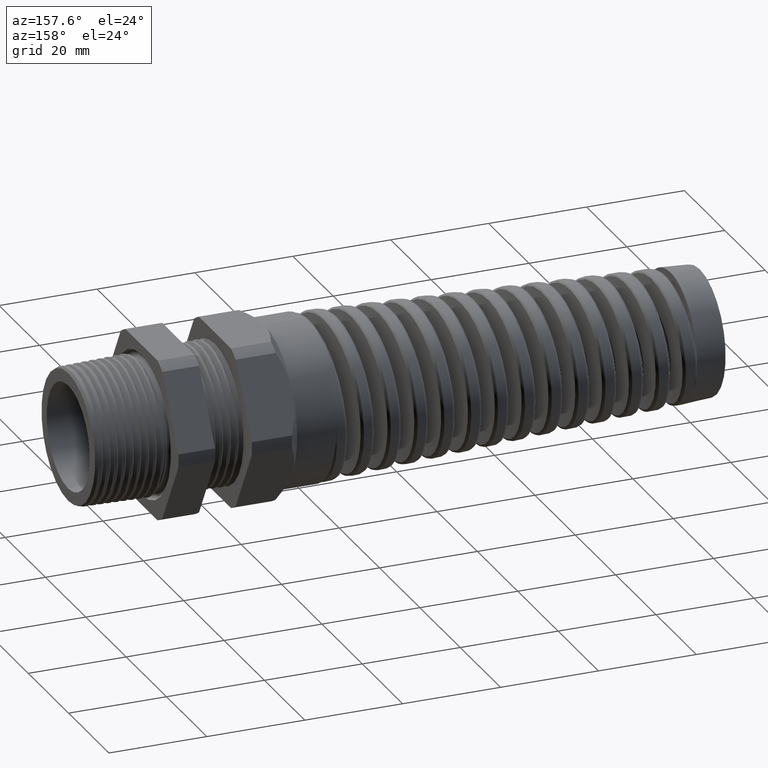
[diagram: clean part render]
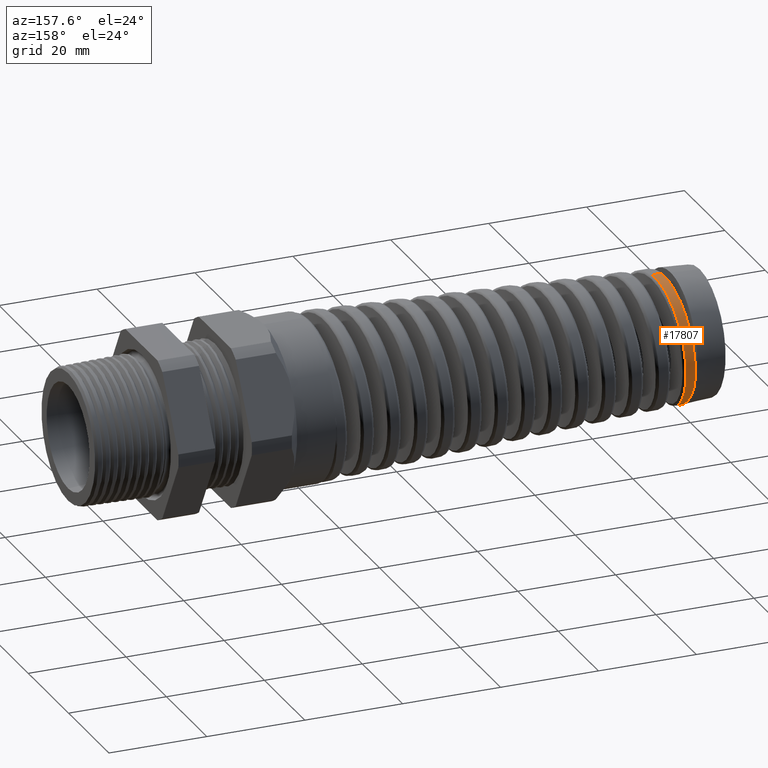
[diagram: same view with one face highlighted and labeled with its STEP entity id]
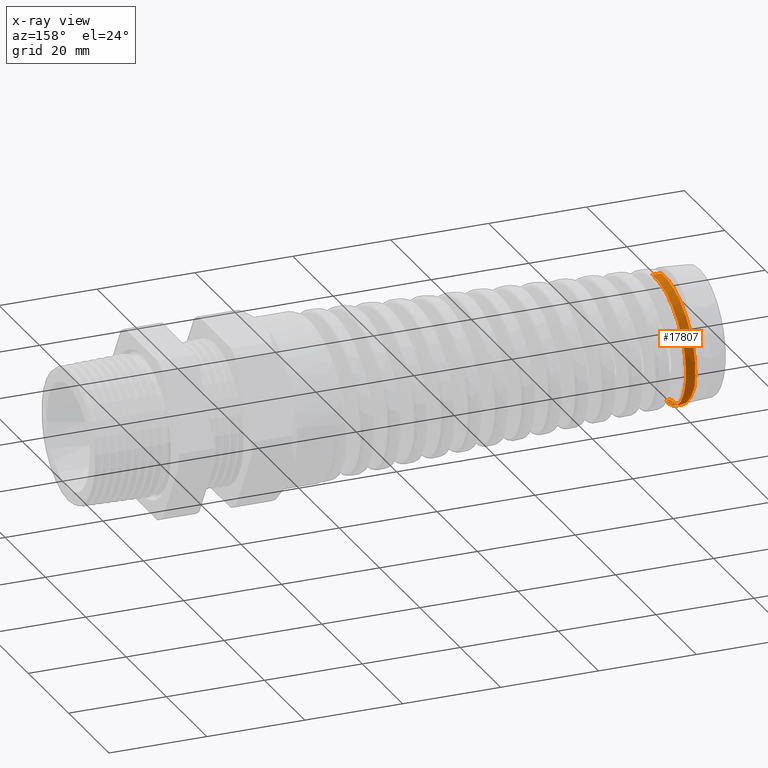
[diagram: x-ray of the same camera — body ghosted, the highlighted face saturated]
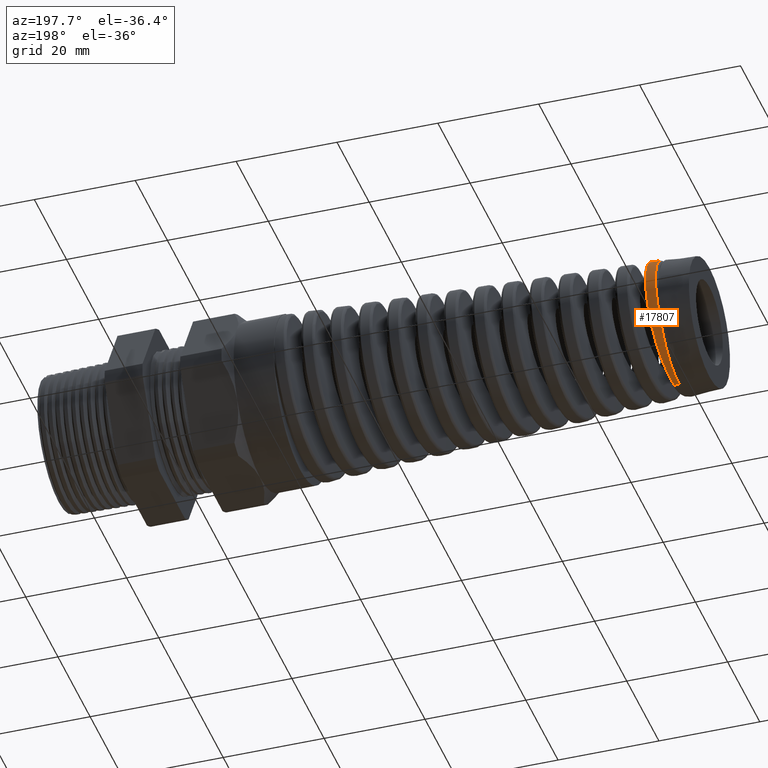
[diagram: same view with one face highlighted and labeled with its STEP entity id]
A machine part, auxiliary view. The second image highlights one B-rep face of the part: STEP entity #17807.
The next image is the same camera in x-ray: the body ghosted, the highlighted face saturated — about 0% of this face is hidden behind the body in this view.
A second angle (auxiliary view) of the same face is appended — the face is thin or edge-on in the first view.
In plain terms, the highlighted conical surface has half-angle 2.5 deg.
Its self-contained STEP definition (entity closure, byte-faithful):
#6779 = DIRECTION ( 'NONE',  ( 0.0000000000000000000, 0.0000000000000000000, -1.000000000000000000 ) ) ;
#6780 = DIRECTION ( 'NONE',  ( 1.000000000000000000, 0.0000000000000000000, 0.0000000000000000000 ) ) ;
#6781 = CARTESIAN_POINT ( 'NONE',  ( -1.530000000000000000, 0.0000000000000000000, 0.0000000000000000000 ) ) ;
#6782 = AXIS2_PLACEMENT_3D ( 'NONE', #6781, #6780, #6779 ) ;
#6783 = CONICAL_SURFACE ( 'NONE', #6782, 0.6500000000000000200, 0.04363323129985850100 ) ;
#6787 = FACE_OUTER_BOUND ( 'NONE', #17877, .T. ) ;
#6803 = CARTESIAN_POINT ( 'NONE',  ( -4.439548189586066200, 0.3181900600162597700, 0.4164494145122699700 ) ) ;
#6804 = CARTESIAN_POINT ( 'NONE',  ( -4.436108612142491300, 0.2753447390481653700, 0.4451196532099767600 ) ) ;
#6805 = CARTESIAN_POINT ( 'NONE',  ( -4.434959665092405200, 0.2605712338280110600, 0.4539790290412117900 ) ) ;
#6806 = CARTESIAN_POINT ( 'NONE',  ( -4.432679146589341800, 0.2304952817869450600, 0.4700749351816120900 ) ) ;
#6807 = CARTESIAN_POINT ( 'NONE',  ( -4.430405841262495600, 0.1997640212051422200, 0.4846343297466918500 ) ) ;
#6808 = CARTESIAN_POINT ( 'NONE',  ( -4.428127210473830300, 0.1677388324938869400, 0.4961564757492454300 ) ) ;
#6809 = CARTESIAN_POINT ( 'NONE',  ( -4.425837817362332100, 0.1350563521653808700, 0.5061343735995741400 ) ) ;
#6810 = CARTESIAN_POINT ( 'NONE',  ( -4.424681366827922300, 0.1182919723504226200, 0.5103664943590744400 ) ) ;
#6812 = CARTESIAN_POINT ( 'NONE',  ( -4.421247129773004900, 0.06787619969880623300, 0.5204787659265565100 ) ) ;
#6813 = CARTESIAN_POINT ( 'NONE',  ( -4.418996807634899300, 0.03404456046795612000, 0.5238636753190288900 ) ) ;
#6814 = CARTESIAN_POINT ( 'NONE',  ( -4.416731862972870500, -7.771221828442405500E-013, 0.5239625649385580800 ) ) ;
#6817 = B_SPLINE_CURVE_WITH_KNOTS ( 'NONE', 3,
 ( #6814, #6813, #6812, #6810, #6809, #6808, #6807, #6806, #6805, #6804, #6803, #6900, #6899, #6898, #6896, #6895, #6893, #6892, #6890, #6889, #6888, #6887, #6885, #6884, #6882, #6881, #6880, #6879, #6878, #6877, #6876, #6875, #6874, #6873, #6872, #6871, #6870, #6869, #6868, #6867, #6865, #6864, #6863, #6862, #6861, #6860, #6858, #6857 ),
 .UNSPECIFIED., .F., .F.,
 ( 4, 2, 2, 1, 2, 2, 2, 2, 2, 2, 2, 2, 2, 2, 1, 2, 2, 2, 2, 2, 2, 2, 2, 2, 4 ),
 ( 1.207144779256859300, 1.209771431820416900, 1.211084758102195700, 1.212398084383974600, 1.213711410665753400, 1.215024736947532400, 1.217651389511090100, 1.218964715792868900, 1.220278042074647700, 1.222904694638205400, 1.224218020919984200, 1.225531347201763000, 1.228157999765320700, 1.229471326047099500, 1.230784652328878300, 1.232097978610657200, 1.233411304892436000, 1.236037957455993700, 1.238664610019551500, 1.241291262583109200, 1.242604588864888000, 1.243917915146666800, 1.245231241428445700, 1.246544567710224500, 1.249171220273782100 ),
 .UNSPECIFIED. ) ;
#6857 = CARTESIAN_POINT ( 'NONE',  ( -4.526572885852961500, 3.060761715072578000E-014, -0.5191668023095779000 ) ) ;
#6858 = CARTESIAN_POINT ( 'NONE',  ( -4.524278735423719900, 0.03400598599264387900, -0.5192669670804905800 ) ) ;
#6860 = CARTESIAN_POINT ( 'NONE',  ( -4.521987925759041200, 0.06789281599935845200, -0.5160585689309235000 ) ) ;
#6861 = CARTESIAN_POINT ( 'NONE',  ( -4.518507147182266900, 0.1185346504183759800, -0.5061081309770127900 ) ) ;
#6862 = CARTESIAN_POINT ( 'NONE',  ( -4.517352133634926000, 0.1352127958961004700, -0.5019565786577079300 ) ) ;
#6863 = CARTESIAN_POINT ( 'NONE',  ( -4.515061901737523100, 0.1678515944966487400, -0.4921104211152156300 ) ) ;
#6864 = CARTESIAN_POINT ( 'NONE',  ( -4.513922898512741500, 0.1838647260515191600, -0.4864056693381766400 ) ) ;
#6865 = CARTESIAN_POINT ( 'NONE',  ( -4.511643641477962600, 0.2152835024554654300, -0.4734481759506079500 ) ) ;
#6867 = CARTESIAN_POINT ( 'NONE',  ( -4.510503405056670800, 0.2306891625475233600, -0.4661954699761483600 ) ) ;
#6868 = CARTESIAN_POINT ( 'NONE',  ( -4.508208490897462900, 0.2608804488261396400, -0.4501125271239195300 ) ) ;
#6869 = CARTESIAN_POINT ( 'NONE',  ( -4.507048230323591500, 0.2757319909781910700, -0.4412312074915378200 ) ) ;
#6870 = CARTESIAN_POINT ( 'NONE',  ( -4.503596651901589500, 0.3184500443449981300, -0.4127210285979985300 ) ) ;
#6871 = CARTESIAN_POINT ( 'NONE',  ( -4.501317306656464000, 0.3447261849617935800, -0.3911585043811191500 ) ) ;
#6872 = CARTESIAN_POINT ( 'NONE',  ( -4.496724095842305100, 0.3929361811242216300, -0.3430029004077488900 ) ) ;
#6873 = CARTESIAN_POINT ( 'NONE',  ( -4.494395975708964200, 0.4149803932745199700, -0.3161424210149450000 ) ) ;
#6874 = CARTESIAN_POINT ( 'NONE',  ( -4.489830732727364500, 0.4527986856184587100, -0.2594911767696761500 ) ) ;
#6875 = CARTESIAN_POINT ( 'NONE',  ( -4.487568691814588300, 0.4688317206135853000, -0.2295126096656594000 ) ) ;
#6876 = CARTESIAN_POINT ( 'NONE',  ( -4.484127135497975500, 0.4884891143526835000, -0.1820267236444623200 ) ) ;
#6877 = CARTESIAN_POINT ( 'NONE',  ( -4.482969294294933100, 0.4943060229050039700, -0.1657355716932960000 ) ) ;
#6878 = CARTESIAN_POINT ( 'NONE',  ( -4.480675717052330100, 0.5042011641650996400, -0.1330123296409090900 ) ) ;
#6879 = CARTESIAN_POINT ( 'NONE',  ( -4.478391913030200100, 0.5124367251216477300, -0.09998062984486684500 ) ) ;
#6880 = CARTESIAN_POINT ( 'NONE',  ( -4.476106820420204400, 0.5174128461645077800, -0.06634452090119265200 ) ) ;
#6881 = CARTESIAN_POINT ( 'NONE',  ( -4.473812595429745200, 0.5207418906562709700, -0.03240357120030252400 ) ) ;
#6882 = CARTESIAN_POINT ( 'NONE',  ( -4.472656287015121600, 0.5215823418465568300, -0.01521162894569735200 ) ) ;
#6884 = CARTESIAN_POINT ( 'NONE',  ( -4.469195005899421400, 0.5215377250531442200, 0.03636188576475583200 ) ) ;
#6885 = CARTESIAN_POINT ( 'NONE',  ( -4.466933206849873300, 0.5181410219177120500, 0.07022307439825306600 ) ) ;
#6887 = CARTESIAN_POINT ( 'NONE',  ( -4.463525729617963100, 0.5081616668612150000, 0.1202533253620102800 ) ) ;
#6888 = CARTESIAN_POINT ( 'NONE',  ( -4.462387648318026500, 0.5040152641776263200, 0.1368022489746849000 ) ) ;
#6889 = CARTESIAN_POINT ( 'NONE',  ( -4.460093855940060700, 0.4940386490358393300, 0.1696367137923571500 ) ) ;
#6890 = CARTESIAN_POINT ( 'NONE',  ( -4.458939956301039200, 0.4882056355114537900, 0.1858917077636559100 ) ) ;
#6892 = CARTESIAN_POINT ( 'NONE',  ( -4.455509794249286900, 0.4685639628469429100, 0.2331932623712766100 ) ) ;
#6893 = CARTESIAN_POINT ( 'NONE',  ( -4.453238888915883800, 0.4525315702921767200, 0.2631531245774952900 ) ) ;
#6895 = CARTESIAN_POINT ( 'NONE',  ( -4.449801118454796100, 0.4240826166766326100, 0.3057304489021346300 ) ) ;
#6896 = CARTESIAN_POINT ( 'NONE',  ( -4.448643986830716400, 0.4138006840550370000, 0.3195969014445768600 ) ) ;
#6898 = CARTESIAN_POINT ( 'NONE',  ( -4.446345888486283600, 0.3920157520860280100, 0.3461238390089595400 ) ) ;
#6899 = CARTESIAN_POINT ( 'NONE',  ( -4.445207700672288100, 0.3805478321510624200, 0.3587589984585120000 ) ) ;
#6900 = CARTESIAN_POINT ( 'NONE',  ( -4.441803356689861800, 0.3444660558181209000, 0.3948302025050692800 ) ) ;
#8548 = CARTESIAN_POINT ( 'NONE',  ( -4.558016244889601300, 0.4968208514996741400, -0.1475219487347013400 ) ) ;
#8549 = CARTESIAN_POINT ( 'NONE',  ( -4.560995567831389200, 0.4824089663200670800, -0.1890517935700999600 ) ) ;
#8550 = CARTESIAN_POINT ( 'NONE',  ( -4.562499192024713300, 0.4737984670341442400, -0.2095567973187388900 ) ) ;
#8551 = CARTESIAN_POINT ( 'NONE',  ( -4.564000000000000900, 0.4639169566595720600, -0.2293930079167151300 ) ) ;
#8552 = B_SPLINE_CURVE_WITH_KNOTS ( 'NONE', 3,
 ( #8551, #8550, #8549, #8548, #8618, #8617, #8616, #8615, #8614, #8613, #8612, #8611, #8610, #8609, #8608, #8607, #8606, #8605, #8604, #8603, #8602, #8601, #8600, #8599, #8598, #8597, #8596, #8595, #8594, #8593, #8592, #8591, #8590, #8589 ),
 .UNSPECIFIED., .F., .F.,
 ( 4, 2, 2, 2, 2, 2, 2, 2, 2, 2, 2, 2, 2, 2, 2, 2, 4 ),
 ( 0.0000000000000000000, 0.001691533287836767300, 0.003383066575673534600, 0.005074599863510301400, 0.005920366507428687400, 0.006766133151347072600, 0.008457666439183846400, 0.01014919972702061800, 0.01353226630269416600, 0.01522379959053094200, 0.01691533287836771700, 0.01860686616620448700, 0.01945263281012287600, 0.02029839945404126100, 0.02198993274187803500, 0.02368146602971480900, 0.02706453260538835600 ),
 .UNSPECIFIED. ) ;
#8553 = CARTESIAN_POINT ( 'NONE',  ( -4.416731862972870500, -7.771221828442405500E-013, 0.5239625649385580800 ) ) ;
#8554 = CARTESIAN_POINT ( 'NONE',  ( -4.492813281536715700, 1.136657049626931900E-015, 0.5206407784662434600 ) ) ;
#8560 = DIRECTION ( 'NONE',  ( 0.9990482215818576900, 5.341834311772755600E-018, 0.04361938736533626400 ) ) ;
#8561 = VECTOR ( 'NONE', #8560, 39.37007874015748100 ) ;
#8562 = CARTESIAN_POINT ( 'NONE',  ( -1.530000000000000000, 7.960204194457796700E-017, 0.6500000000000000200 ) ) ;
#8563 = LINE ( 'NONE', #8562, #8561 ) ;
#8564 = DIRECTION ( 'NONE',  ( 0.0000000000000000000, 0.0000000000000000000, -1.000000000000000000 ) ) ;
#8565 = DIRECTION ( 'NONE',  ( 1.000000000000000000, 0.0000000000000000000, 0.0000000000000000000 ) ) ;
#8566 = CARTESIAN_POINT ( 'NONE',  ( -4.564000000000000900, 0.0000000000000000000, 0.0000000000000000000 ) ) ;
#8567 = AXIS2_PLACEMENT_3D ( 'NONE', #8566, #8565, #8564 ) ;
#8568 = CIRCLE ( 'NONE', #8567, 0.5175326992155736500 ) ;
#8569 = CARTESIAN_POINT ( 'NONE',  ( -4.526572885852961500, 3.060761715072578000E-014, -0.5191668023095779000 ) ) ;
#8582 = CARTESIAN_POINT ( 'NONE',  ( -4.564000000000000900, 0.4639169566595720600, -0.2293930079167151300 ) ) ;
#8589 = CARTESIAN_POINT ( 'NONE',  ( -4.492813281536715700, 1.136657049626931900E-015, 0.5206407784662434600 ) ) ;
#8590 = CARTESIAN_POINT ( 'NONE',  ( -4.495770691029466800, 0.04390140525723860300, 0.5205116551792232600 ) ) ;
#8591 = CARTESIAN_POINT ( 'NONE',  ( -4.498688015818328400, 0.08725055013748317400, 0.5149193650724482900 ) ) ;
#8592 = CARTESIAN_POINT ( 'NONE',  ( -4.503159933208572800, 0.1514168375172072800, 0.4981548703117553700 ) ) ;
#8593 = CARTESIAN_POINT ( 'NONE',  ( -4.504647978160546600, 0.1723930159092410800, 0.4912112262388699800 ) ) ;
#8594 = CARTESIAN_POINT ( 'NONE',  ( -4.507599572075472200, 0.2129924815364635000, 0.4748768092980232800 ) ) ;
#8595 = CARTESIAN_POINT ( 'NONE',  ( -4.509068845045435500, 0.2327060572798604100, 0.4654628434508810100 ) ) ;
#8596 = CARTESIAN_POINT ( 'NONE',  ( -4.511283187566825800, 0.2613936480248360600, 0.4494674590456017000 ) ) ;
#8597 = CARTESIAN_POINT ( 'NONE',  ( -4.512023027509758100, 0.2708086229525558100, 0.4438223497938789100 ) ) ;
#8598 = CARTESIAN_POINT ( 'NONE',  ( -4.513509449725876100, 0.2893375267873546400, 0.4318934120807756400 ) ) ;
#8599 = CARTESIAN_POINT ( 'NONE',  ( -4.514258573817770100, 0.2984809818803242400, 0.4255861585550494400 ) ) ;
#8600 = CARTESIAN_POINT ( 'NONE',  ( -4.516492953950975500, 0.3251152138247048200, 0.4059291070596109400 ) ) ;
#8601 = CARTESIAN_POINT ( 'NONE',  ( -4.517970268449849900, 0.3418789909356113000, 0.3918167975068248000 ) ) ;
#8602 = CARTESIAN_POINT ( 'NONE',  ( -4.520921168781042000, 0.3734789403776711500, 0.3616369314718440600 ) ) ;
#8603 = CARTESIAN_POINT ( 'NONE',  ( -4.522393881475698800, 0.3883150850743344300, 0.3455692626084279100 ) ) ;
#8604 = CARTESIAN_POINT ( 'NONE',  ( -4.525360627426271900, 0.4160228713842110100, 0.3114436774738274500 ) ) ;
#8605 = CARTESIAN_POINT ( 'NONE',  ( -4.526861628174117400, 0.4289338028488701200, 0.2932898655801237700 ) ) ;
#8606 = CARTESIAN_POINT ( 'NONE',  ( -4.531312247518323800, 0.4636165919284608300, 0.2372916029735112900 ) ) ;
#8607 = CARTESIAN_POINT ( 'NONE',  ( -4.534244645315075300, 0.4817861960080873100, 0.1975409966430968800 ) ) ;
#8608 = CARTESIAN_POINT ( 'NONE',  ( -4.538724632112127300, 0.5014547205661723500, 0.1342206890386763200 ) ) ;
#8609 = CARTESIAN_POINT ( 'NONE',  ( -4.540215736093686300, 0.5066426308052447400, 0.1127303684643130600 ) ) ;
#8610 = CARTESIAN_POINT ( 'NONE',  ( -4.543175951594495400, 0.5142114226745385700, 0.06962380723947925200 ) ) ;
#8611 = CARTESIAN_POINT ( 'NONE',  ( -4.544651818061544700, 0.5166228139610218300, 0.04791124227522203200 ) ) ;
#8612 = CARTESIAN_POINT ( 'NONE',  ( -4.546875202897279400, 0.5181759176409844700, 0.01510404116698437800 ) ) ;
#8613 = CARTESIAN_POINT ( 'NONE',  ( -4.547617853045407400, 0.5183486170129705300, 0.004128460338984959500 ) ) ;
#8614 = CARTESIAN_POINT ( 'NONE',  ( -4.549108758486441100, 0.5179906585127904700, -0.01790376663781520500 ) ) ;
#8615 = CARTESIAN_POINT ( 'NONE',  ( -4.549859710479653400, 0.5174556650243721200, -0.02899846832382566400 ) ) ;
#8616 = CARTESIAN_POINT ( 'NONE',  ( -4.552099089419032300, 0.5148024881190203000, -0.06199743710707595500 ) ) ;
#8617 = CARTESIAN_POINT ( 'NONE',  ( -4.553578653248301600, 0.5116499734441656300, -0.08368347735828642100 ) ) ;
#8618 = CARTESIAN_POINT ( 'NONE',  ( -4.556537264384948200, 0.5026592157356061200, -0.1264457446024051500 ) ) ;
#9029 = LINE ( 'NONE', #9112, #9111 ) ;
#9109 = CARTESIAN_POINT ( 'NONE',  ( -4.564000000000000900, -6.337947635484405400E-017, -0.5175326992155722100 ) ) ;
#9110 = DIRECTION ( 'NONE',  ( 0.9990482215818576900, 0.0000000000000000000, -0.04361938736533626400 ) ) ;
#9111 = VECTOR ( 'NONE', #9110, 39.37007874015748100 ) ;
#9112 = CARTESIAN_POINT ( 'NONE',  ( -1.530000000000000000, 0.0000000000000000000, -0.6500000000000000200 ) ) ;
#17807 = ADVANCED_FACE ( 'NONE', ( #6787 ), #6783, .T. ) ;
#17825 = EDGE_CURVE ( 'NONE', #20944, #20910, #6817, .T. ) ;
#17877 = EDGE_LOOP ( 'NONE', ( #20926, #20895, #20892, #21083, #20915 ) ) ;
#20892 = ORIENTED_EDGE ( 'NONE', *, *, #17825, .T. ) ;
#20895 = ORIENTED_EDGE ( 'NONE', *, *, #20920, .T. ) ;
#20910 = VERTEX_POINT ( 'NONE', #8569 ) ;
#20915 = ORIENTED_EDGE ( 'NONE', *, *, #20916, .T. ) ;
#20916 = EDGE_CURVE ( 'NONE', #21082, #20977, #8568, .T. ) ;
#20920 = EDGE_CURVE ( 'NONE', #20931, #20944, #8563, .T. ) ;
#20926 = ORIENTED_EDGE ( 'NONE', *, *, #20947, .T. ) ;
#20931 = VERTEX_POINT ( 'NONE', #8554 ) ;
#20944 = VERTEX_POINT ( 'NONE', #8553 ) ;
#20947 = EDGE_CURVE ( 'NONE', #20977, #20931, #8552, .T. ) ;
#20977 = VERTEX_POINT ( 'NONE', #8582 ) ;
#21080 = EDGE_CURVE ( 'NONE', #21082, #20910, #9029, .T. ) ;
#21082 = VERTEX_POINT ( 'NONE', #9109 ) ;
#21083 = ORIENTED_EDGE ( 'NONE', *, *, #21080, .F. ) ;